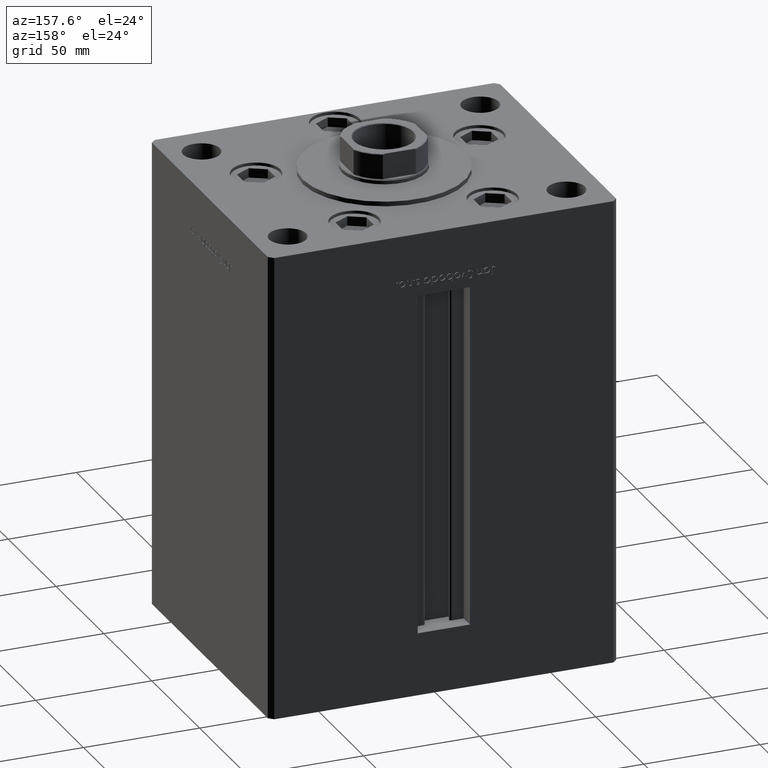
[diagram: clean part render]
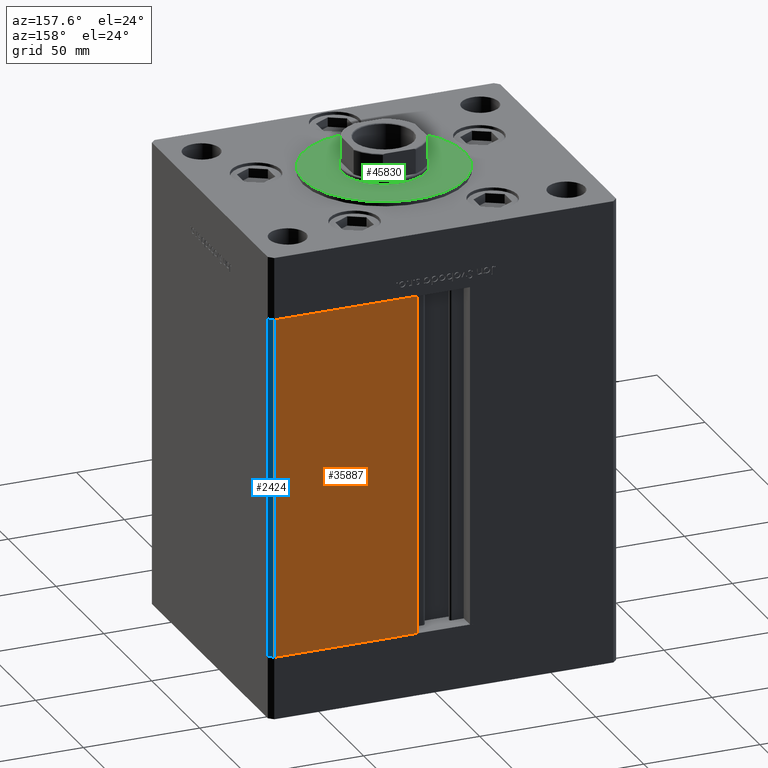
[diagram: same view with three faces highlighted in distinct colors, each labeled with its STEP entity id]
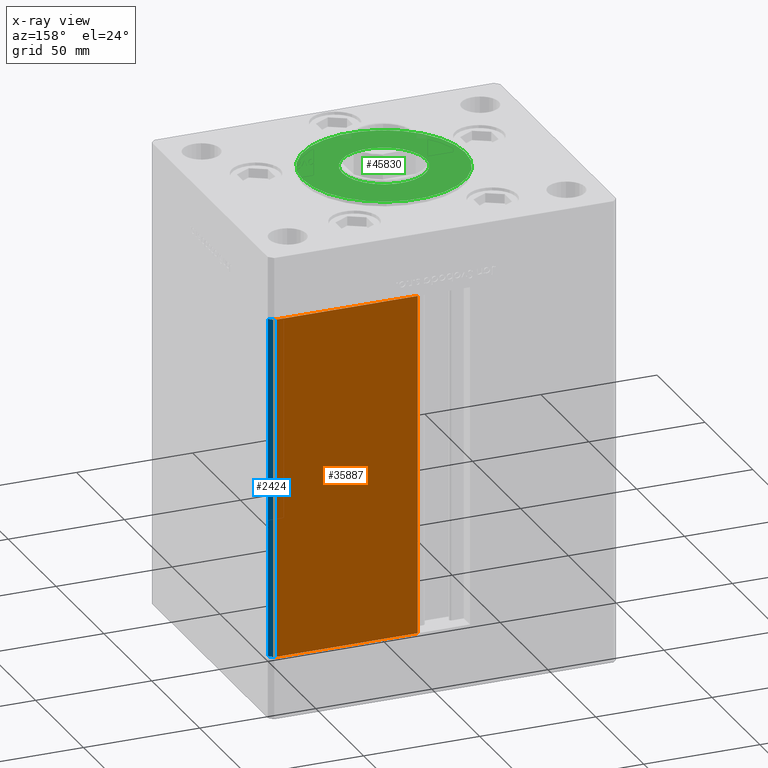
[diagram: x-ray of the same camera — body ghosted, the three highlighted faces saturated]
A machine part, auxiliary view with three faces highlighted in distinct colors.
The next image is the same camera in x-ray (body ghosted, the three faces saturated) — at least one of them is partly hidden behind the body in this view.
Their STEP definitions:

[orange] entity #35887 — the highlighted planar face has unit normal (-0, -1, 0).
#1066 = PLANE ( 'NONE',  #17271 ) ;
#1355 = VECTOR ( 'NONE', #10044, 1000.000000000000000 ) ;
#3553 = VERTEX_POINT ( 'NONE', #41081 ) ;
#5733 = VECTOR ( 'NONE', #50767, 1000.000000000000000 ) ;
#6266 = EDGE_CURVE ( 'NONE', #17916, #3553, #47069, .T. ) ;
#6607 = CARTESIAN_POINT ( 'NONE',  ( -11.25000000000000178, 62.49999999999999289, 0.000000000000000000 ) ) ;
#6649 = CARTESIAN_POINT ( 'NONE',  ( 11.25000000000000178, 62.49999999999999289, 0.000000000000000000 ) ) ;
#10044 = DIRECTION ( 'NONE',  ( -1.000000000000000000, 1.123707514802790025E-16, 0.000000000000000000 ) ) ;
#10717 = CARTESIAN_POINT ( 'NONE',  ( 11.25000000000000178, 62.49999999999999289, 0.000000000000000000 ) ) ;
#12552 = VECTOR ( 'NONE', #15545, 1000.000000000000000 ) ;
#12677 = VERTEX_POINT ( 'NONE', #50927 ) ;
#13128 = EDGE_CURVE ( 'NONE', #28190, #12677, #15037, .T. ) ;
#13456 = LINE ( 'NONE', #49798, #24797 ) ;
#13622 = ORIENTED_EDGE ( 'NONE', *, *, #13128, .T. ) ;
#15037 = LINE ( 'NONE', #40024, #12552 ) ;
#15545 = DIRECTION ( 'NONE',  ( -0.000000000000000000, -0.000000000000000000, -1.000000000000000000 ) ) ;
#15678 = ORIENTED_EDGE ( 'NONE', *, *, #38628, .T. ) ;
#17145 = CARTESIAN_POINT ( 'NONE',  ( -11.25000000000000178, 62.49999999999999289, 147.0000000000000000 ) ) ;
#17271 = AXIS2_PLACEMENT_3D ( 'NONE', #17145, #29252, #36381 ) ;
#17600 = ORIENTED_EDGE ( 'NONE', *, *, #42339, .T. ) ;
#17916 = VERTEX_POINT ( 'NONE', #6649 ) ;
#20441 = CARTESIAN_POINT ( 'NONE',  ( 73.00000000000001421, 62.50000000000000000, 147.0000000000000000 ) ) ;
#22854 = DIRECTION ( 'NONE',  ( 1.000000000000000000, 0.000000000000000000, 0.000000000000000000 ) ) ;
#24797 = VECTOR ( 'NONE', #22854, 1000.000000000000000 ) ;
#28190 = VERTEX_POINT ( 'NONE', #20441 ) ;
#29252 = DIRECTION ( 'NONE',  ( -1.123707514802790025E-16, -1.000000000000000000, 0.000000000000000000 ) ) ;
#31108 = LINE ( 'NONE', #6607, #1355 ) ;
#33468 = FACE_OUTER_BOUND ( 'NONE', #45253, .T. ) ;
#35887 = ADVANCED_FACE ( 'NONE', ( #33468 ), #1066, .F. ) ;
#36381 = DIRECTION ( 'NONE',  ( 1.000000000000000000, -1.123707514802790025E-16, 0.000000000000000000 ) ) ;
#38628 = EDGE_CURVE ( 'NONE', #12677, #17916, #31108, .T. ) ;
#40024 = CARTESIAN_POINT ( 'NONE',  ( 73.00000000000001421, 62.50000000000000000, 147.0000000000000000 ) ) ;
#41081 = CARTESIAN_POINT ( 'NONE',  ( 11.24999999999999467, 62.49999999999999289, 147.0000000000000000 ) ) ;
#42339 = EDGE_CURVE ( 'NONE', #3553, #28190, #13456, .T. ) ;
#45253 = EDGE_LOOP ( 'NONE', ( #15678, #50750, #17600, #13622 ) ) ;
#47069 = LINE ( 'NONE', #10717, #5733 ) ;
#49798 = CARTESIAN_POINT ( 'NONE',  ( -11.25000000000000178, 62.49999999999999289, 147.0000000000000000 ) ) ;
#50750 = ORIENTED_EDGE ( 'NONE', *, *, #6266, .T. ) ;
#50767 = DIRECTION ( 'NONE',  ( -0.000000000000000000, -0.000000000000000000, 1.000000000000000000 ) ) ;
#50927 = CARTESIAN_POINT ( 'NONE',  ( 73.00000000000001421, 62.50000000000000000, 0.000000000000000000 ) ) ;

[blue] entity #2424 — the highlighted planar face has unit normal (0.7071, 0.7071, 0).
#2424 = ADVANCED_FACE ( 'NONE', ( #25325 ), #29014, .T. ) ;
#5201 = VECTOR ( 'NONE', #23077, 1000.000000000000114 ) ;
#5494 = EDGE_CURVE ( 'NONE', #47748, #19761, #22702, .T. ) ;
#7002 = LINE ( 'NONE', #14403, #5201 ) ;
#7096 = ORIENTED_EDGE ( 'NONE', *, *, #20695, .F. ) ;
#7621 = ORIENTED_EDGE ( 'NONE', *, *, #13128, .F. ) ;
#9931 = AXIS2_PLACEMENT_3D ( 'NONE', #16630, #45609, #49820 ) ;
#12041 = LINE ( 'NONE', #27588, #42187 ) ;
#12552 = VECTOR ( 'NONE', #15545, 1000.000000000000000 ) ;
#12677 = VERTEX_POINT ( 'NONE', #50927 ) ;
#13128 = EDGE_CURVE ( 'NONE', #28190, #12677, #15037, .T. ) ;
#14403 = CARTESIAN_POINT ( 'NONE',  ( 73.00000000000001421, 62.50000000000000000, 147.0000000000000000 ) ) ;
#15037 = LINE ( 'NONE', #40024, #12552 ) ;
#15545 = DIRECTION ( 'NONE',  ( -0.000000000000000000, -0.000000000000000000, -1.000000000000000000 ) ) ;
#16630 = CARTESIAN_POINT ( 'NONE',  ( 73.00000000000001421, 62.50000000000000000, 147.0000000000000000 ) ) ;
#19761 = VERTEX_POINT ( 'NONE', #34330 ) ;
#20441 = CARTESIAN_POINT ( 'NONE',  ( 73.00000000000001421, 62.50000000000000000, 147.0000000000000000 ) ) ;
#20695 = EDGE_CURVE ( 'NONE', #12677, #19761, #12041, .T. ) ;
#21827 = EDGE_CURVE ( 'NONE', #28190, #47748, #7002, .T. ) ;
#22702 = LINE ( 'NONE', #26387, #27778 ) ;
#22955 = DIRECTION ( 'NONE',  ( -0.000000000000000000, -0.000000000000000000, -1.000000000000000000 ) ) ;
#23077 = DIRECTION ( 'NONE',  ( 0.7071067811865474617, -0.7071067811865474617, 0.000000000000000000 ) ) ;
#25325 = FACE_OUTER_BOUND ( 'NONE', #36810, .T. ) ;
#26387 = CARTESIAN_POINT ( 'NONE',  ( 75.00000000000001421, 60.50000000000000000, 147.0000000000000000 ) ) ;
#27521 = ORIENTED_EDGE ( 'NONE', *, *, #21827, .T. ) ;
#27588 = CARTESIAN_POINT ( 'NONE',  ( 73.00000000000001421, 62.50000000000000000, 0.000000000000000000 ) ) ;
#27778 = VECTOR ( 'NONE', #22955, 1000.000000000000000 ) ;
#28190 = VERTEX_POINT ( 'NONE', #20441 ) ;
#29014 = PLANE ( 'NONE',  #9931 ) ;
#30318 = ORIENTED_EDGE ( 'NONE', *, *, #5494, .T. ) ;
#34330 = CARTESIAN_POINT ( 'NONE',  ( 75.00000000000001421, 60.50000000000000000, 0.000000000000000000 ) ) ;
#36810 = EDGE_LOOP ( 'NONE', ( #7096, #7621, #27521, #30318 ) ) ;
#40024 = CARTESIAN_POINT ( 'NONE',  ( 73.00000000000001421, 62.50000000000000000, 147.0000000000000000 ) ) ;
#40773 = CARTESIAN_POINT ( 'NONE',  ( 75.00000000000001421, 60.50000000000000000, 147.0000000000000000 ) ) ;
#42187 = VECTOR ( 'NONE', #43658, 1000.000000000000114 ) ;
#43658 = DIRECTION ( 'NONE',  ( 0.7071067811865474617, -0.7071067811865474617, 0.000000000000000000 ) ) ;
#45609 = DIRECTION ( 'NONE',  ( 0.7071067811865475727, 0.7071067811865475727, -0.000000000000000000 ) ) ;
#47748 = VERTEX_POINT ( 'NONE', #40773 ) ;
#49820 = DIRECTION ( 'NONE',  ( -0.7071067811865474617, 0.7071067811865474617, 0.000000000000000000 ) ) ;
#50927 = CARTESIAN_POINT ( 'NONE',  ( 73.00000000000001421, 62.50000000000000000, 0.000000000000000000 ) ) ;

[green] entity #45830 — the highlighted planar face has unit normal (0, 0, 1).
#5 = CIRCLE ( 'NONE', #46322, 18.00000000000000000 ) ;
#764 = FACE_BOUND ( 'NONE', #36907, .T. ) ;
#1380 = DIRECTION ( 'NONE',  ( 0.000000000000000000, 0.000000000000000000, 1.000000000000000000 ) ) ;
#1479 = CIRCLE ( 'NONE', #41035, 35.00000000000000711 ) ;
#1545 = DIRECTION ( 'NONE',  ( 0.000000000000000000, 0.000000000000000000, 1.000000000000000000 ) ) ;
#3940 = CARTESIAN_POINT ( 'NONE',  ( 35.00000000000000711, -2.652630106891490698E-15, 2.000000000000000000 ) ) ;
#4342 = CIRCLE ( 'NONE', #38005, 18.00000000000000000 ) ;
#4463 = DIRECTION ( 'NONE',  ( 1.000000000000000000, 0.000000000000000000, 0.000000000000000000 ) ) ;
#8151 = VERTEX_POINT ( 'NONE', #20145 ) ;
#11438 = VERTEX_POINT ( 'NONE', #17544 ) ;
#12556 = DIRECTION ( 'NONE',  ( 0.000000000000000000, 0.000000000000000000, 1.000000000000000000 ) ) ;
#12889 = PLANE ( 'NONE',  #24906 ) ;
#13428 = AXIS2_PLACEMENT_3D ( 'NONE', #43674, #22630, #38953 ) ;
#14532 = VERTEX_POINT ( 'NONE', #3940 ) ;
#14745 = EDGE_CURVE ( 'NONE', #14532, #11438, #42037, .T. ) ;
#17544 = CARTESIAN_POINT ( 'NONE',  ( -35.00000000000000711, -6.938893903907228378E-15, 2.000000000000000000 ) ) ;
#17873 = EDGE_CURVE ( 'NONE', #8151, #39988, #5, .T. ) ;
#20145 = CARTESIAN_POINT ( 'NONE',  ( 18.00000000000000000, -6.938893903907228378E-15, 2.000000000000000000 ) ) ;
#20542 = DIRECTION ( 'NONE',  ( 1.000000000000000000, 0.000000000000000000, -0.000000000000000000 ) ) ;
#20806 = DIRECTION ( 'NONE',  ( 0.000000000000000000, 0.000000000000000000, 1.000000000000000000 ) ) ;
#21295 = EDGE_CURVE ( 'NONE', #39988, #8151, #4342, .T. ) ;
#22504 = ORIENTED_EDGE ( 'NONE', *, *, #17873, .F. ) ;
#22630 = DIRECTION ( 'NONE',  ( 0.000000000000000000, 0.000000000000000000, 1.000000000000000000 ) ) ;
#24906 = AXIS2_PLACEMENT_3D ( 'NONE', #25522, #1545, #20542 ) ;
#25363 = DIRECTION ( 'NONE',  ( 1.000000000000000000, 0.000000000000000000, 0.000000000000000000 ) ) ;
#25522 = CARTESIAN_POINT ( 'NONE',  ( 0.000000000000000000, -6.938893903907228378E-15, 2.000000000000000000 ) ) ;
#28987 = ORIENTED_EDGE ( 'NONE', *, *, #14745, .T. ) ;
#29317 = CARTESIAN_POINT ( 'NONE',  ( 0.000000000000000000, -6.938893903907228378E-15, 2.000000000000000000 ) ) ;
#33167 = FACE_OUTER_BOUND ( 'NONE', #35406, .T. ) ;
#35406 = EDGE_LOOP ( 'NONE', ( #45210, #28987 ) ) ;
#36907 = EDGE_LOOP ( 'NONE', ( #22504, #40846 ) ) ;
#38005 = AXIS2_PLACEMENT_3D ( 'NONE', #44242, #20806, #4463 ) ;
#38953 = DIRECTION ( 'NONE',  ( 1.000000000000000000, 0.000000000000000000, 0.000000000000000000 ) ) ;
#39988 = VERTEX_POINT ( 'NONE', #50409 ) ;
#40727 = CARTESIAN_POINT ( 'NONE',  ( 0.000000000000000000, -6.938893903907228378E-15, 2.000000000000000000 ) ) ;
#40846 = ORIENTED_EDGE ( 'NONE', *, *, #21295, .F. ) ;
#41035 = AXIS2_PLACEMENT_3D ( 'NONE', #40727, #12556, #44682 ) ;
#42037 = CIRCLE ( 'NONE', #13428, 35.00000000000000711 ) ;
#43674 = CARTESIAN_POINT ( 'NONE',  ( 0.000000000000000000, -6.938893903907228378E-15, 2.000000000000000000 ) ) ;
#44242 = CARTESIAN_POINT ( 'NONE',  ( 0.000000000000000000, -6.938893903907228378E-15, 2.000000000000000000 ) ) ;
#44682 = DIRECTION ( 'NONE',  ( 1.000000000000000000, 0.000000000000000000, 0.000000000000000000 ) ) ;
#45210 = ORIENTED_EDGE ( 'NONE', *, *, #51595, .T. ) ;
#45830 = ADVANCED_FACE ( 'NONE', ( #764, #33167 ), #12889, .T. ) ;
#46322 = AXIS2_PLACEMENT_3D ( 'NONE', #29317, #1380, #25363 ) ;
#50409 = CARTESIAN_POINT ( 'NONE',  ( -18.00000000000000000, -4.734529665441992555E-15, 2.000000000000000000 ) ) ;
#51595 = EDGE_CURVE ( 'NONE', #11438, #14532, #1479, .T. ) ;